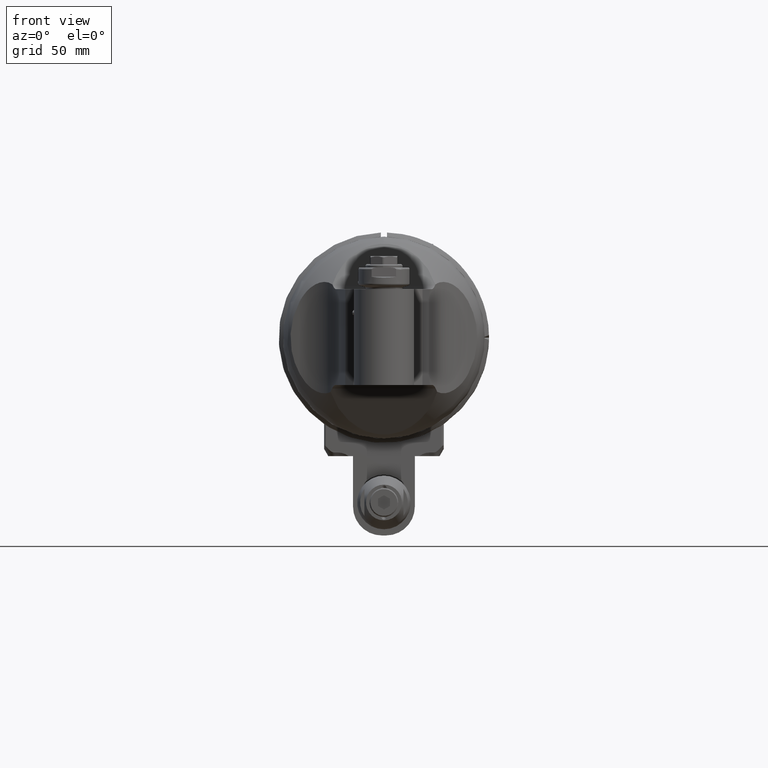
[diagram: clean part render]
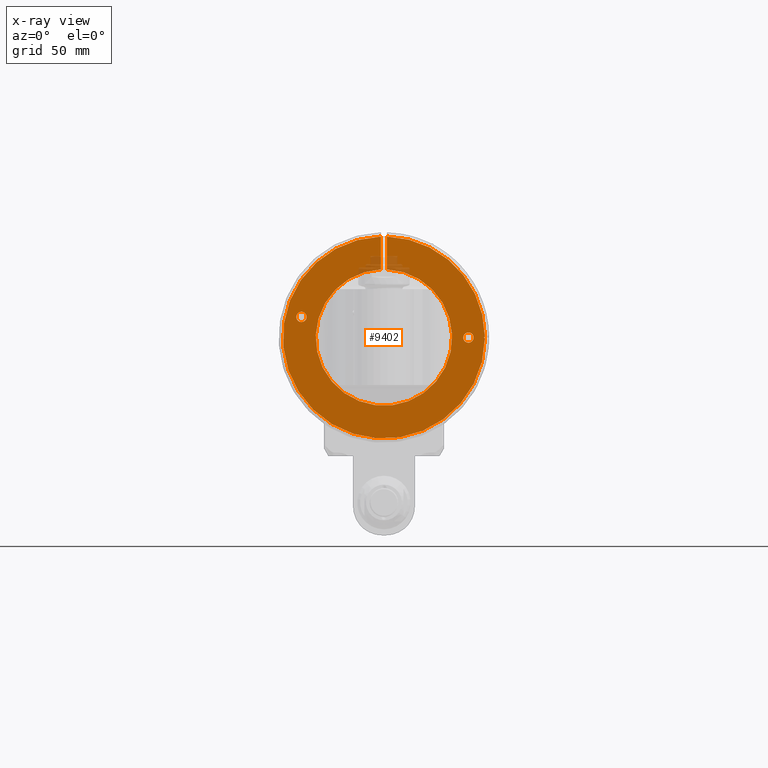
[diagram: x-ray — body ghosted, one internal face saturated and labeled with its STEP entity id]
A machine part, front view, then the same camera in x-ray: the body is ghosted and one INTERNAL B-rep face — a face not visible from any outside direction — is saturated and labeled: STEP entity #9402.
In plain terms, the highlighted planar face has unit normal (0, -1, 0).
Its self-contained STEP definition (entity closure, byte-faithful):
#406=FACE_BOUND('',#2052,.T.);
#407=FACE_BOUND('',#2053,.T.);
#909=CIRCLE('',#10348,1.92913385826772);
#910=CIRCLE('',#10349,1.30225788461378);
#911=CIRCLE('',#10350,1.92913385826772);
#912=CIRCLE('',#10351,0.0984251968503937);
#913=CIRCLE('',#10352,0.0984251968503937);
#1426=FACE_OUTER_BOUND('',#2051,.T.);
#2051=EDGE_LOOP('',(#7442,#7443,#7444,#7445,#7446,#7447,#7448));
#2052=EDGE_LOOP('',(#7449));
#2053=EDGE_LOOP('',(#7450));
#2731=LINE('',#17029,#3412);
#2734=LINE('',#17057,#3415);
#2735=LINE('',#17062,#3416);
#2736=LINE('',#17063,#3417);
#3412=VECTOR('',#12407,0.62731156921811);
#3415=VECTOR('',#12422,0.627311569217716);
#3416=VECTOR('',#12427,0.02594196669383);
#3417=VECTOR('',#12428,0.02594196669383);
#4254=VERTEX_POINT('',#17027);
#4255=VERTEX_POINT('',#17028);
#4261=VERTEX_POINT('',#17053);
#4262=VERTEX_POINT('',#17054);
#4263=VERTEX_POINT('',#17056);
#4264=VERTEX_POINT('',#17059);
#4265=VERTEX_POINT('',#17061);
#4266=VERTEX_POINT('',#17064);
#4267=VERTEX_POINT('',#17066);
#5398=EDGE_CURVE('',#4254,#4255,#2731,.T.);
#5407=EDGE_CURVE('',#4261,#4262,#909,.T.);
#5408=EDGE_CURVE('',#4262,#4263,#2734,.T.);
#5409=EDGE_CURVE('',#4263,#4254,#910,.T.);
#5410=EDGE_CURVE('',#4255,#4264,#911,.T.);
#5411=EDGE_CURVE('',#4264,#4265,#2735,.T.);
#5412=EDGE_CURVE('',#4265,#4261,#2736,.T.);
#5413=EDGE_CURVE('',#4266,#4266,#912,.T.);
#5414=EDGE_CURVE('',#4267,#4267,#913,.T.);
#7442=ORIENTED_EDGE('',*,*,#5407,.T.);
#7443=ORIENTED_EDGE('',*,*,#5408,.T.);
#7444=ORIENTED_EDGE('',*,*,#5409,.T.);
#7445=ORIENTED_EDGE('',*,*,#5398,.T.);
#7446=ORIENTED_EDGE('',*,*,#5410,.T.);
#7447=ORIENTED_EDGE('',*,*,#5411,.T.);
#7448=ORIENTED_EDGE('',*,*,#5412,.T.);
#7449=ORIENTED_EDGE('',*,*,#5413,.T.);
#7450=ORIENTED_EDGE('',*,*,#5414,.T.);
#8974=PLANE('',#10347);
#9402=ADVANCED_FACE('',(#1426,#406,#407),#8974,.T.);
#10347=AXIS2_PLACEMENT_3D('',#17052,#12418,#12419);
#10348=AXIS2_PLACEMENT_3D('',#17055,#12420,#12421);
#10349=AXIS2_PLACEMENT_3D('',#17058,#12423,#12424);
#10350=AXIS2_PLACEMENT_3D('',#17060,#12425,#12426);
#10351=AXIS2_PLACEMENT_3D('',#17065,#12429,#12430);
#10352=AXIS2_PLACEMENT_3D('',#17067,#12431,#12432);
#12407=DIRECTION('',(0.,0.,1.));
#12418=DIRECTION('center_axis',(0.,-1.,0.));
#12419=DIRECTION('ref_axis',(0.,0.,1.));
#12420=DIRECTION('center_axis',(0.,-1.,0.));
#12421=DIRECTION('ref_axis',(0.999961249018959,0.,0.00880343458216564));
#12422=DIRECTION('',(-5.896537023224E-13,0.,-1.));
#12423=DIRECTION('center_axis',(0.,1.,0.));
#12424=DIRECTION('ref_axis',(0.0453482515314194,0.,0.998971238866787));
#12425=DIRECTION('center_axis',(0.,-1.,0.));
#12426=DIRECTION('ref_axis',(-0.0306122448979601,0.,0.999531335407904));
#12427=DIRECTION('',(-0.75592894601842,0.,0.654653670708017));
#12428=DIRECTION('',(0.75592894601842,0.,0.654653670708017));
#12429=DIRECTION('center_axis',(0.,1.,0.));
#12430=DIRECTION('ref_axis',(-1.,0.,0.));
#12431=DIRECTION('center_axis',(0.,1.,0.));
#12432=DIRECTION('ref_axis',(-1.,0.,0.));
#17027=CARTESIAN_POINT('',(-0.0590551181102362,6.5272954728622E-16,1.30091817231654));
#17028=CARTESIAN_POINT('',(-0.0590551181102362,0.,1.92822974153504));
#17029=CARTESIAN_POINT('',(-0.0590551181102362,6.5272954728622E-16,1.30091817231654));
#17052=CARTESIAN_POINT('Origin',(0.,0.,1.93428110441063));
#17053=CARTESIAN_POINT('',(1.92905910243819,-5.59482469102362E-16,0.0169830037215));
#17054=CARTESIAN_POINT('',(0.0590551181102362,1.3987061727563E-15,1.92822974153504));
#17055=CARTESIAN_POINT('Origin',(0.,1.3987061727563E-15,0.));
#17056=CARTESIAN_POINT('',(0.0590551181098819,0.,1.30091817231732));
#17057=CARTESIAN_POINT('',(0.0590551181102362,0.,1.92822974153504));
#17058=CARTESIAN_POINT('Origin',(0.,-4.19611851826772E-15,0.));
#17059=CARTESIAN_POINT('',(1.92905910243819,0.,-0.0169830037215039));
#17060=CARTESIAN_POINT('Origin',(0.,-1.95818864185866E-15,0.));
#17061=CARTESIAN_POINT('',(1.90944881889764,-5.59482469102362E-16,-7.26636650475984E-16));
#17062=CARTESIAN_POINT('',(1.92905910243819,0.,-0.0169830037215039));
#17063=CARTESIAN_POINT('',(1.90944881889764,-5.59482469102362E-16,-7.26636650475984E-16));
#17064=CARTESIAN_POINT('',(-1.47637795275591,0.,0.393700787401575));
#17065=CARTESIAN_POINT('Origin',(-1.5748031496063,0.,0.393700787401575));
#17066=CARTESIAN_POINT('',(1.71259842519685,0.,0.));
#17067=CARTESIAN_POINT('Origin',(1.61417322834646,0.,0.));